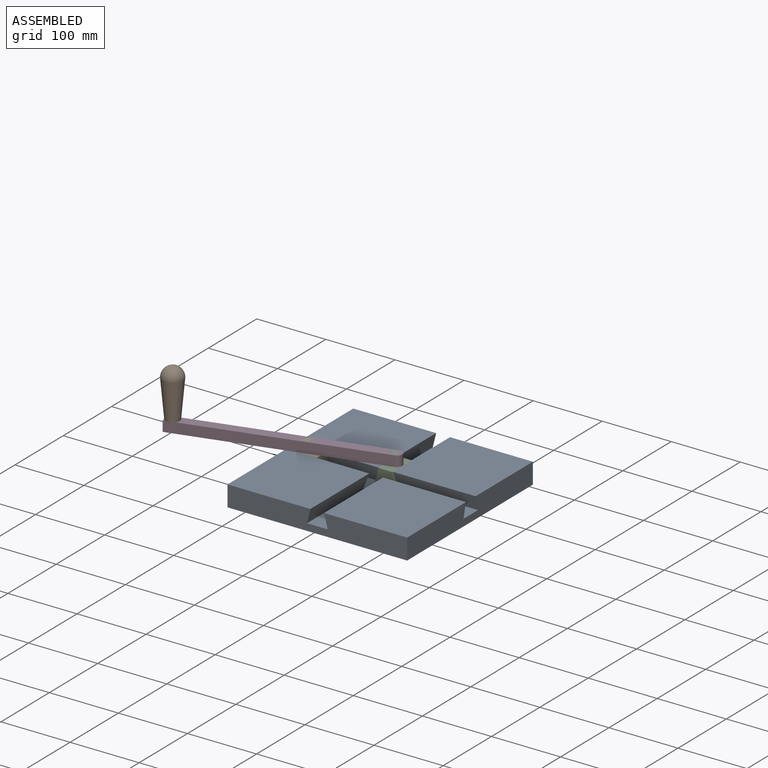
[diagram: assembled view]
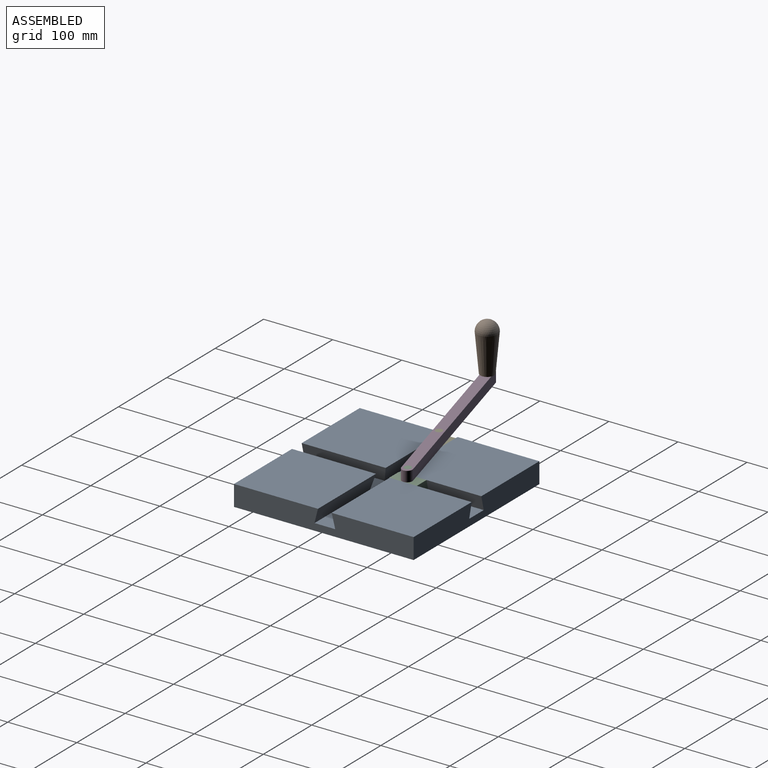
[diagram: assembled view, second angle]
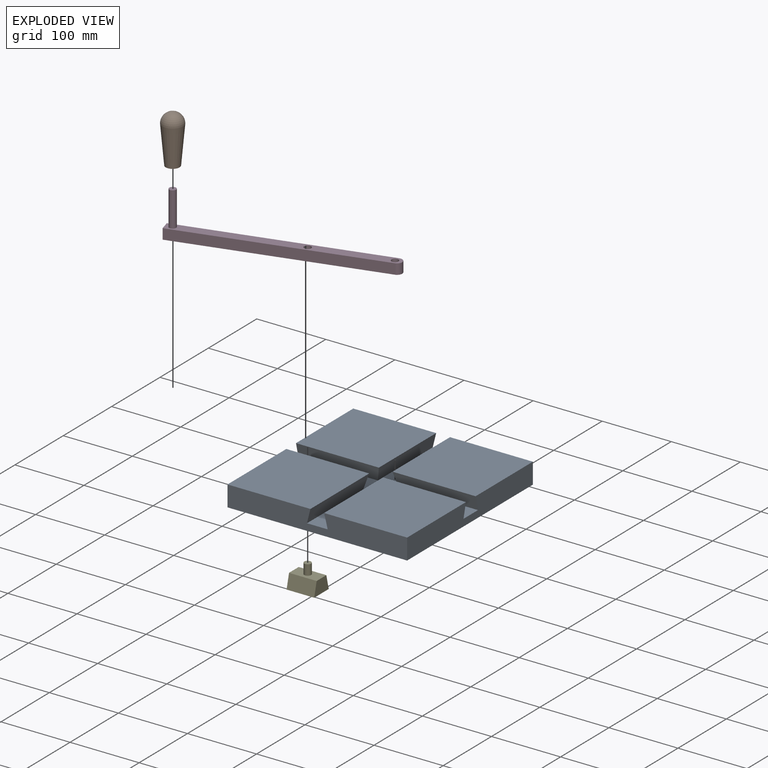
[diagram: exploded view]
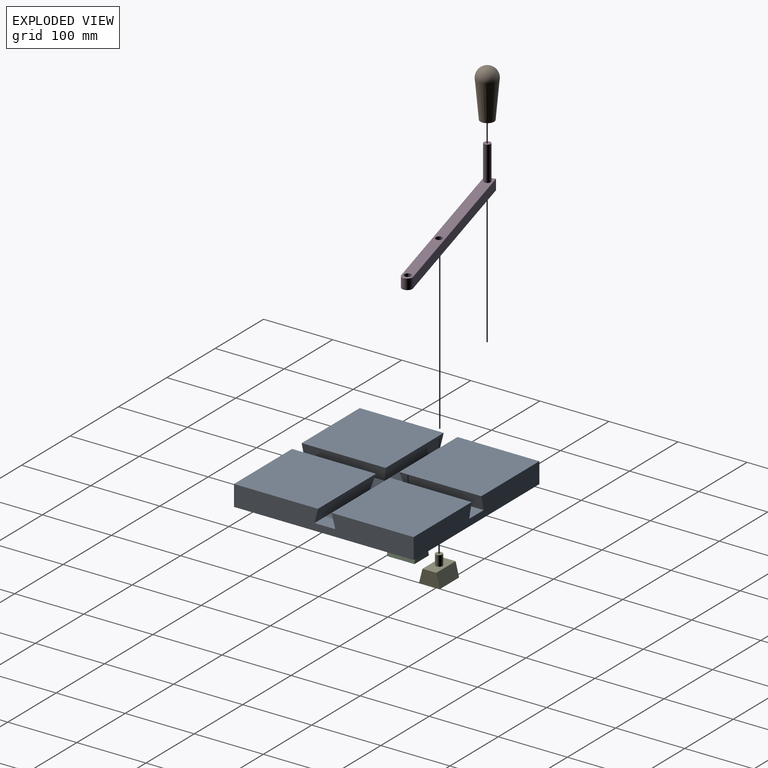
[diagram: exploded view, second angle]
ASSEMBLY  parts=5 mates=5
PART A: 18 faces, bbox 260x260x30 mm
  f0: plane 120x118.45mm, normal (0,0,1), area 14214.1mm2, adj f5,f7,f13,f14
  f1: plane 121.55x120mm, normal (0,0,1), area 14585.9mm2, adj f5,f8,f11,f17
  f2: plane 120x20mm, normal (0,0.97,-0.24), area 2422.3mm2, adj f6,f9,f12,f16
  f3: plane 120x20mm, normal (0,-0.97,-0.24), area 2422.3mm2, adj f4,f6,f12,f15
  f4: plane 120x118.45mm, normal (0,0,1), area 14214.1mm2, adj f3,f6,f7,f15
  f5: plane 260x30mm, normal (1,0,0), area 7300mm2, adj f0,f1,f7,f8,f10,f11,f12,f13
  f6: plane 260x30mm, normal (-1,0,0), area 7300mm2, adj f2,f3,f4,f7,f8,f9,f10,f12
  f7: plane 260x30mm, normal (0,1,0), area 7300mm2, adj f0,f4,f5,f6,f10,f12,f14,f15
  f8: plane 260x30mm, normal (0,-1,0), area 7300mm2, adj f1,f5,f6,f9,f10,f12,f16,f17
  f9: plane 121.55x120mm, normal (0,0,1), area 14585.9mm2, adj f2,f6,f8,f16
  f10: plane 260x260mm, normal (0,0,-1), area 67600mm2, adj f5,f6,f7,f8
  f11: plane 120x20mm, normal (0,0.97,-0.24), area 2422.3mm2, adj f1,f5,f12,f17
  f12: plane 260x260mm, normal (0,0,1), area 14700mm2, adj f2,f3,f5,f6,f7,f8,f11,f13
  f13: plane 120x20mm, normal (0,-0.97,-0.24), area 2422.3mm2, adj f0,f5,f12,f14
  f14: plane 118.45x20mm, normal (-0.97,0,-0.24), area 2390.4mm2, adj f0,f7,f12,f13
  f15: plane 118.45x20mm, normal (0.97,0,-0.24), area 2390.4mm2, adj f3,f4,f7,f12
  f16: plane 121.55x20mm, normal (0.97,0,-0.24), area 2454.3mm2, adj f2,f8,f9,f12
  f17: plane 121.55x20mm, normal (-0.97,0,-0.24), area 2454.3mm2, adj f1,f8,f11,f12
PART B: 5 faces, bbox 30x30x70 mm
  f0: plane 20x20mm, normal (0,0,-1), area 235.6mm2, adj f1,f3
  f1: cone r=10mm half-angle=5.2deg, axis (0,0,1), area 4337.5mm2, adj f0,f2
  f2: sphere r=15mm, area 1413.7mm2, adj f1
  f3: cylinder r=5mm len=50mm, axis (0,0,-1), area 1570.8mm2, adj f0,f4
  f4: plane 10x10mm, normal (0,0,-1), area 78.5mm2, adj f3
PART C: 8 faces, bbox 30x40x35 mm
  f0: plane 40x20mm, normal (0.97,0,0.24), area 824.6mm2, adj f1,f3,f4,f5
  f1: plane 40x20mm, normal (0,0,1), area 721.5mm2, adj f0,f2,f4,f5,f6
  f2: plane 40x20mm, normal (-0.97,0,0.24), area 824.6mm2, adj f1,f3,f4,f5
  f3: plane 40x30mm, normal (0,0,-1), area 1200mm2, adj f0,f2,f4,f5
  f4: plane 30x20mm, normal (0,-1,0), area 500mm2, adj f0,f1,f2,f3
  f5: plane 30x20mm, normal (0,1,0), area 500mm2, adj f0,f1,f2,f3
  f6: cylinder r=5mm len=15mm, axis (0,0,-1), area 471.2mm2, adj f1,f7
  f7: plane 10x10mm, normal (0,0,1), area 78.5mm2, adj f6
PART D: 10 faces, bbox 300x15x65 mm
  f0: plane 15x15mm, normal (-1,0,0), area 225mm2, adj f1,f4,f6,f7
  f1: plane 292.5x15mm, normal (0,-1,0), area 4387.5mm2, adj f0,f2,f6,f7
  f2: cylinder r=7.5mm len=15mm, axis (0,0,-1), area 353.4mm2, adj f1,f4,f6,f7
  f3: cylinder r=5mm len=15mm, axis (0,0,-1), area 471.2mm2, adj f6,f7
  f4: plane 292.5x15mm, normal (0,1,0), area 4387.5mm2, adj f0,f2,f6,f7
  f5: cylinder r=5mm len=15mm, axis (0,0,-1), area 471.2mm2, adj f6,f7
  f6: plane 300x15mm, normal (0,0,1), area 4240.2mm2, adj f0,f1,f2,f3,f4,f5,f8
  f7: plane 300x15mm, normal (0,0,-1), area 4318.8mm2, adj f0,f1,f2,f3,f4,f5
  f8: cylinder r=5mm len=50mm, axis (0,0,-1), area 1570.8mm2, adj f6,f9
  f9: plane 10x10mm, normal (0,0,1), area 78.5mm2, adj f8
PART E: same geometry as C
PLACE A at identity fixed
PLACE B rot(axis=(0,0,1),15.3deg) t=(-270.01,-45,45)mm
PLACE C t=(15,49.12,10)mm
PLACE D rot(axis=(0,0,1),15.3deg) t=(11.63,24.53,30)mm
PLACE E rot(axis=(0,0,1),90deg) t=(-126.08,15,10)mm
MATE revolute D.f5 <-> E.f6  axis (0,0,1) through (-106.08,0,45)mm
MATE revolute D.f3 <-> C.f6  axis (0,0,-1) through (0,29.12,45)mm
MATE slider E.f4 <-> A.f5  axis (1,0,0) through (-86.08,0,10)mm
MATE slider C.f4 <-> A.f8  axis (0,-1,0) through (0,9.12,10)mm
MATE fastened B.f3 <-> D.f8  axis (0,0,-1) through (-270.01,-45,45)mm
